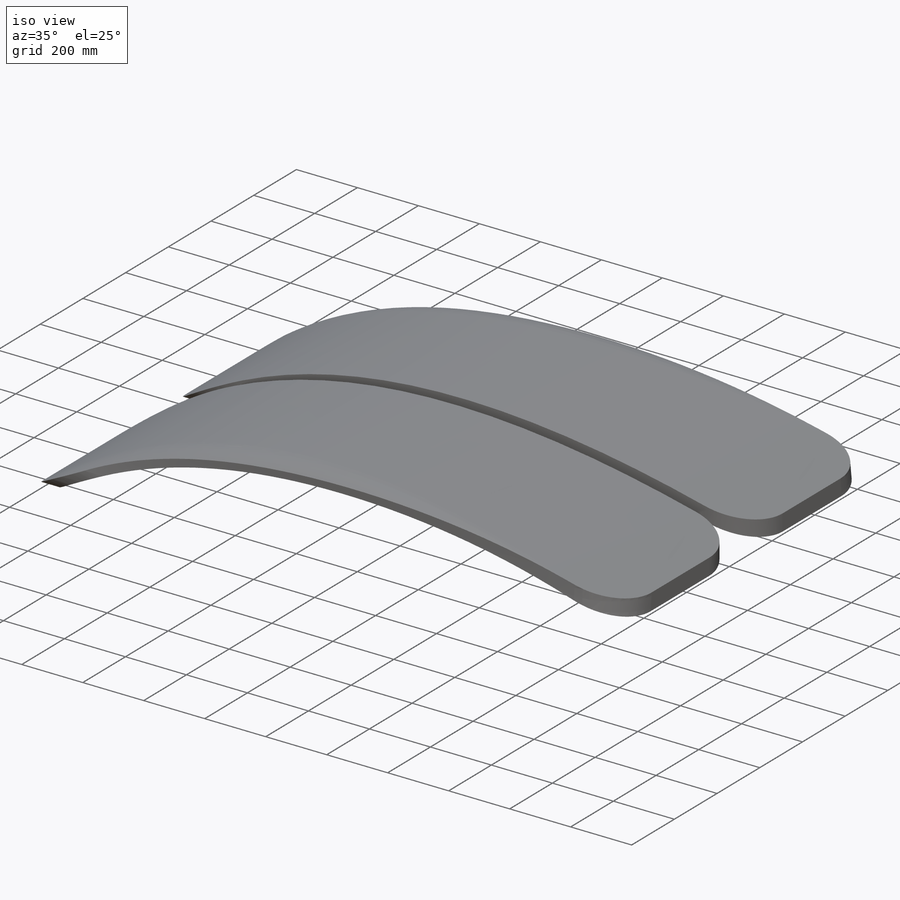
[diagram: iso view]
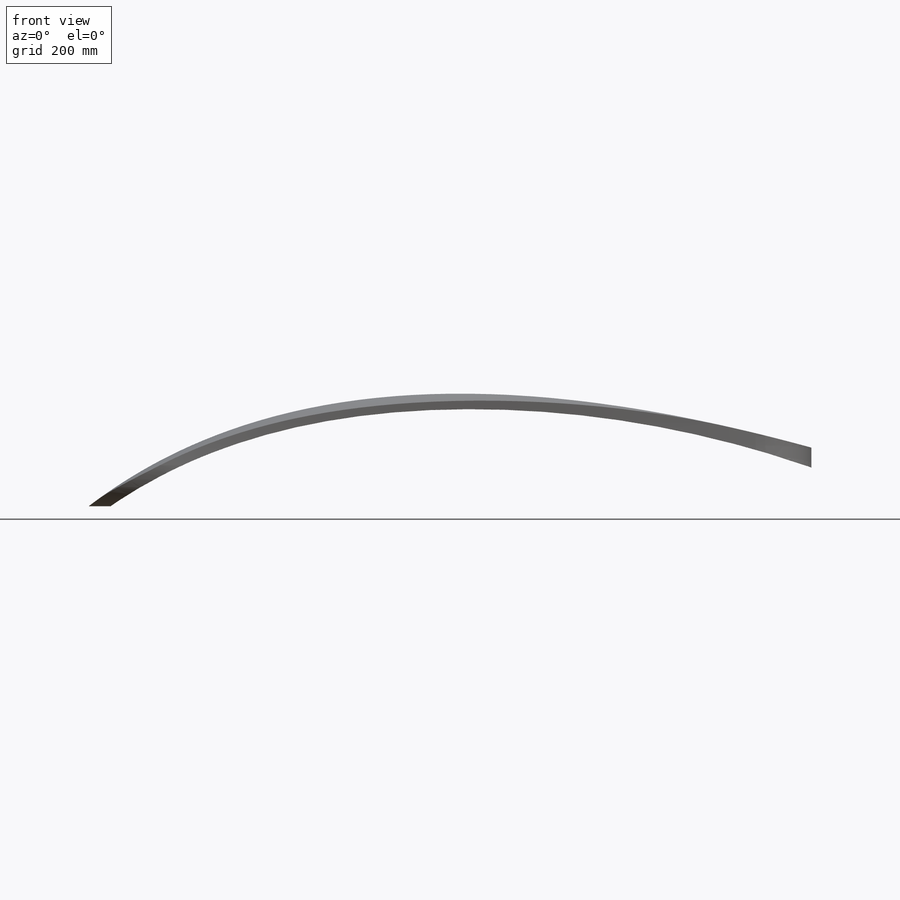
[diagram: front view]
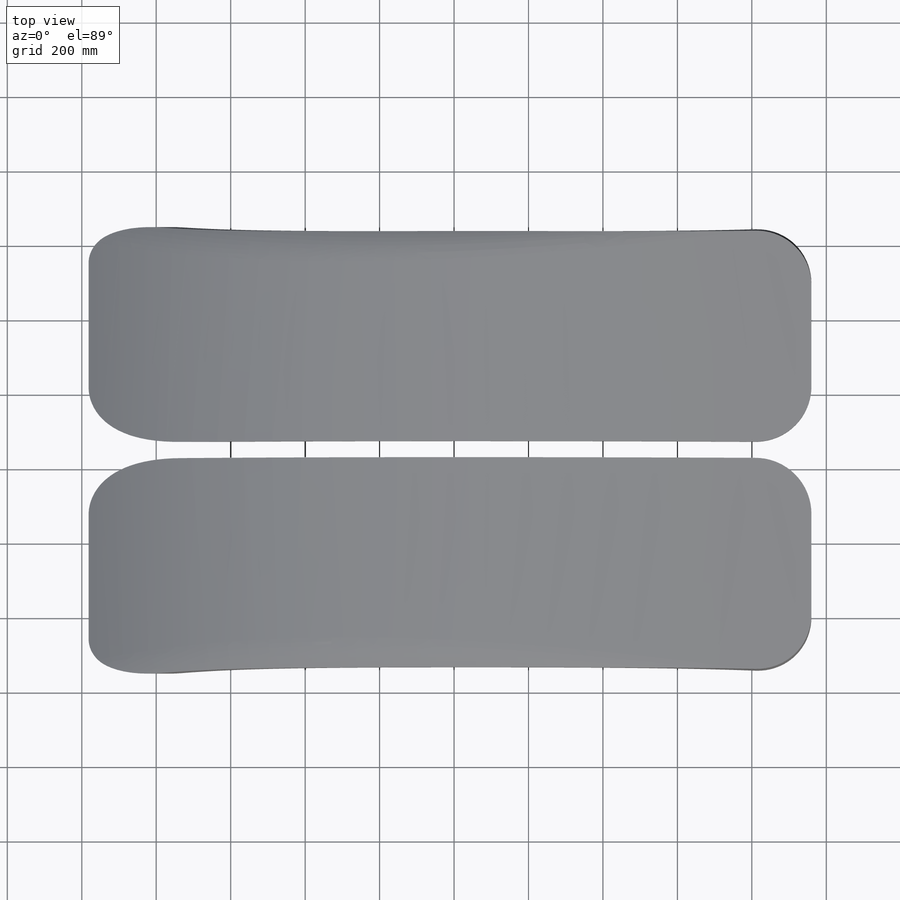
[diagram: top view]
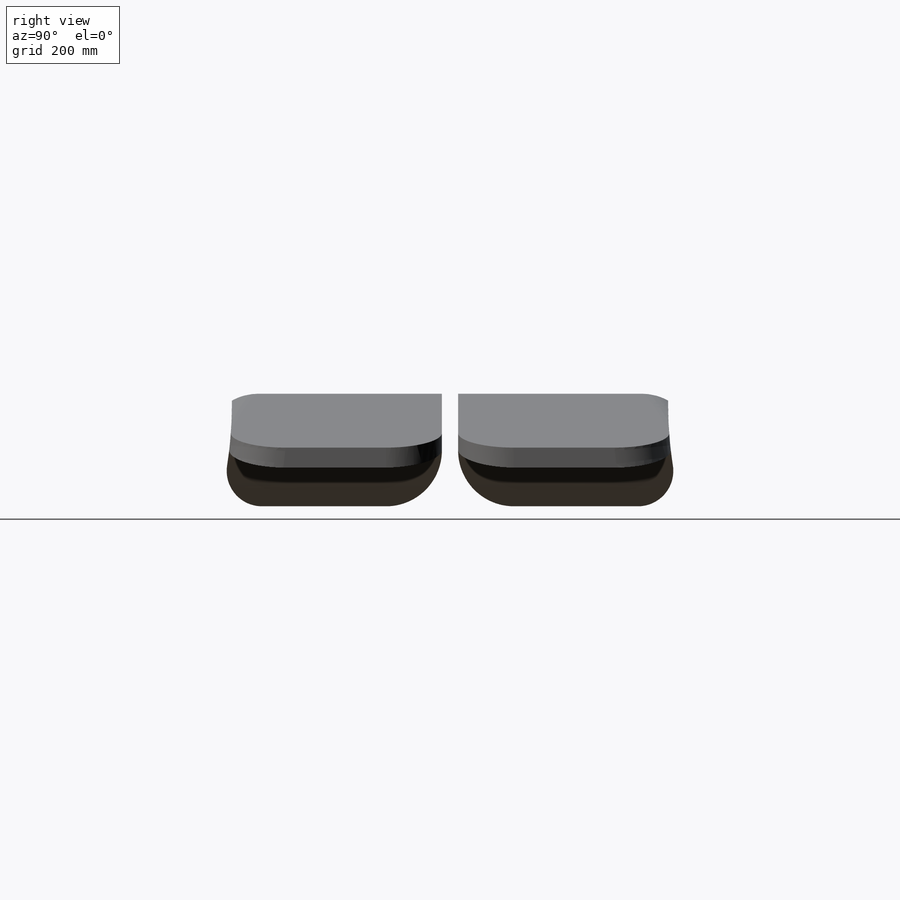
[diagram: right view]
SOLIDWORKS PART (.sldprt)
format: sldprt  version: not decoded by parser v0  size: 586,752 bytes
history: native  units: mm
features: fillet x13, sketch x7, cut_extrude x6, material x1, extrude x1, plane x1 (+11 scaffold rows collapsed)
feature tree (40):
  scaffold x11  (default folders/planes/origin — collapsed)
  material  "Material <not specified>"
  sketch  "Sketch1"  dims[D1=2500.0mm]
  extrude  "Boss-Extrude1"  Depth=1500mm
  plane  "Plane1"  Offset=1240mm
  sketch  "Sketch2"
  cut_extrude  "Cut-Extrude1"  Depth=3842mm
  sketch  "Sketch3"  dims[D1=600.0mm D2=600.0mm]
  cut_extrude  "Cut-Extrude2"  Depth=300mm
  sketch  "Sketch4"  dims[D1=0.0mm D2=0.0mm]
  cut_extrude  "Cut-Extrude3"  Depth=300mm
  fillet  "Fillet1"  Radius=100mm
  fillet  "Fillet2"  Radius=50mm
  fillet  "Fillet3"  Radius=50mm
  fillet  "Fillet4"  Radius=25mm
  fillet  "Fillet5"  Radius=25mm
  fillet  "Fillet6"  Radius=25mm
  fillet  "Fillet7"  Radius=25mm
  fillet  "Fillet8"  Radius=25mm
  sketch  "Sketch5"  dims[c1.D1=95.0mm c1.D2=95.0mm c2.D1=50.0mm]
  cut_extrude  "Cut-Extrude4"  Depth=2174mm
  sketch  "Sketch6"  dims[D1=95.0mm]
  cut_extrude  "Cut-Extrude5"  Depth=2400mm
  sketch  "Sketch7"
  cut_extrude  "Cut-Extrude6"  Depth=2400mm
  fillet  "Fillet9"  Radius=150mm
  fillet  "Fillet10"  Radius=150mm
  fillet  "Fillet11"  Radius=150mm
  fillet  "Fillet12"  Radius=150mm
  fillet  "Fillet13"  Radius=150mm
decode coverage: 25 of 27 modeling features carry decoded parameters
note: suppression state not decoded; provenance and decode notes live in map.json
